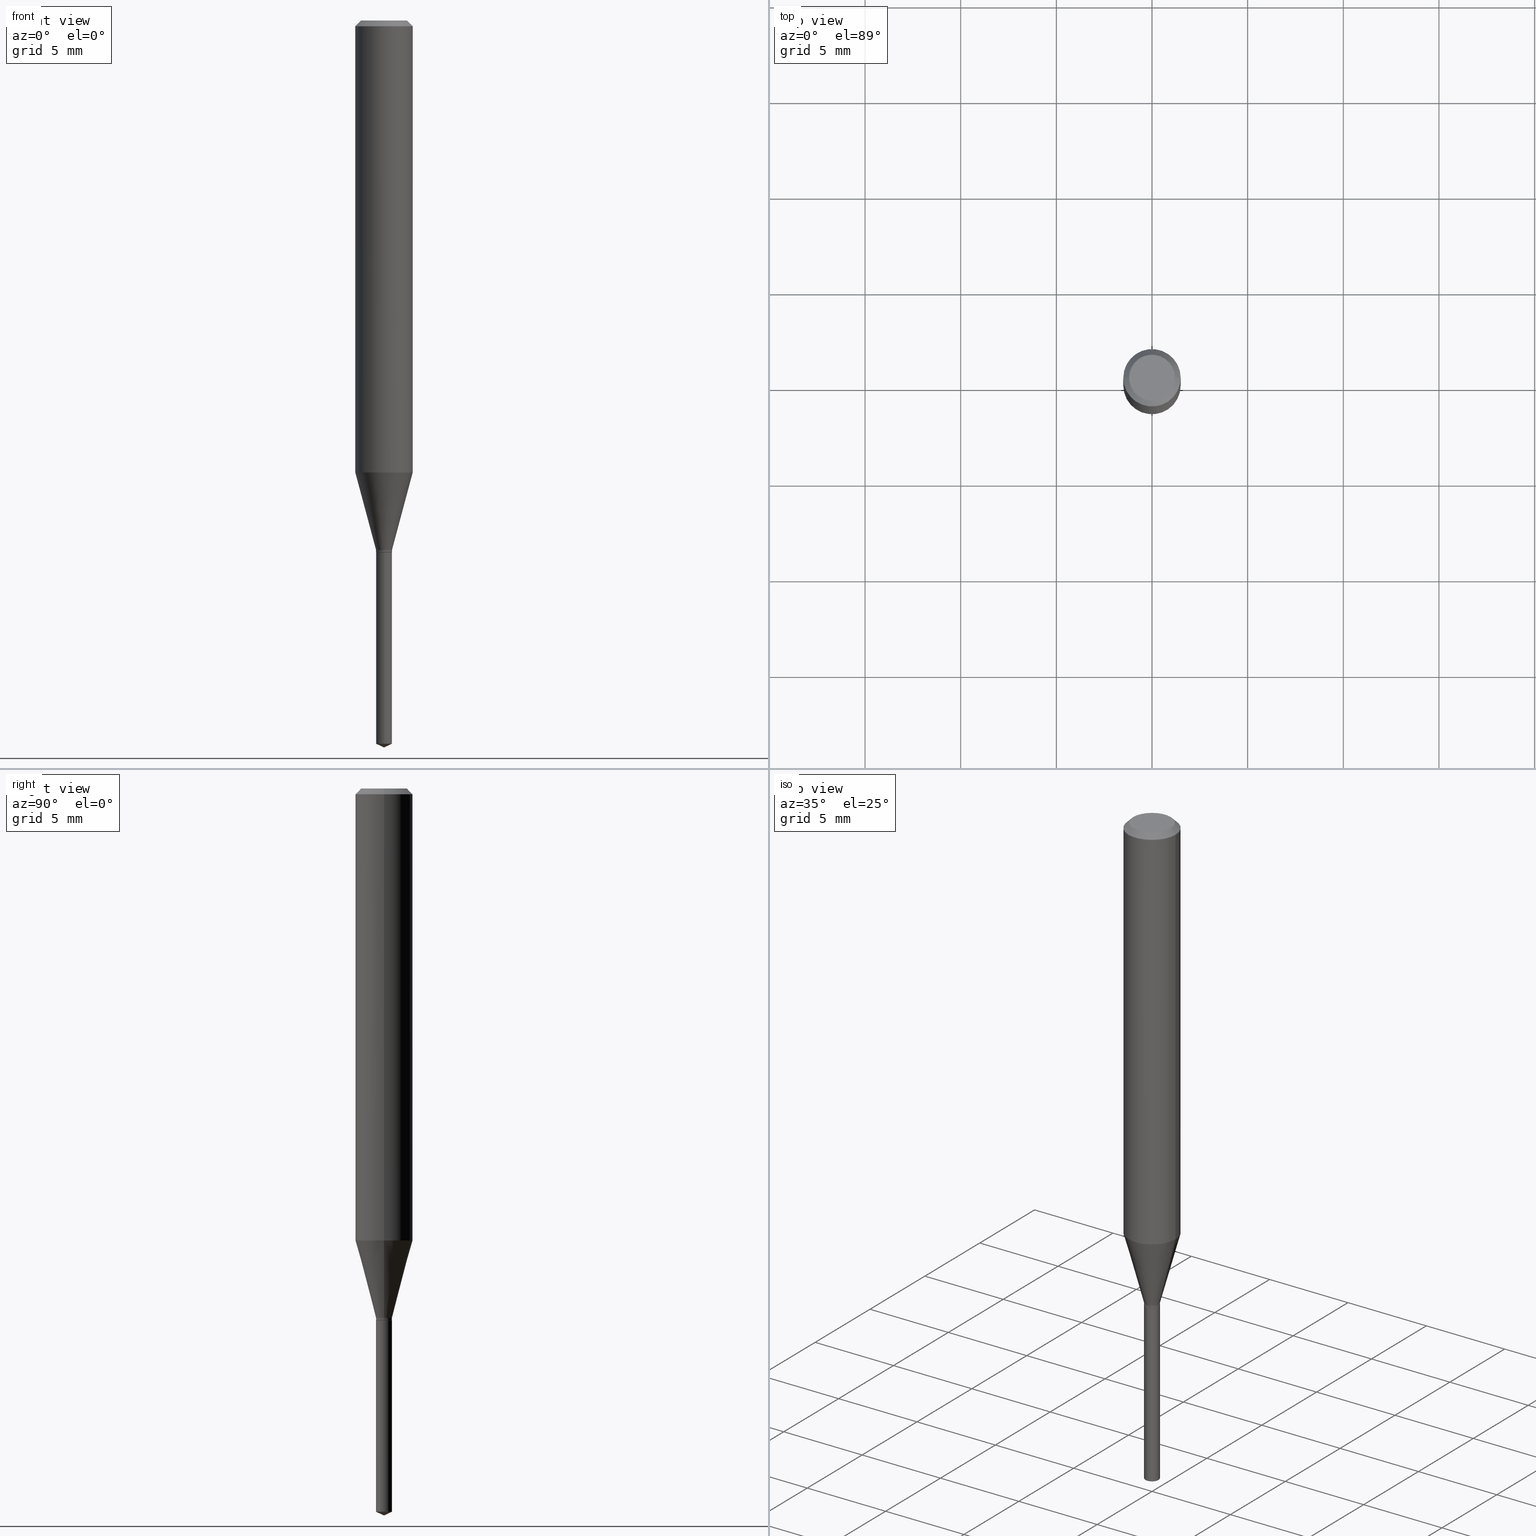
[diagram: canonical four-view strip — front | top / right | iso, engineering-drawing reading convention]
A machine part, canonical four-view strip (front | top / right | iso — engineering-drawing reading convention). The complete STEP part file that produces these views, byte-faithful:
ISO-10303-21;
HEADER;
FILE_DESCRIPTION (( 'STEP AP203' ),
    '1' );
FILE_NAME ('08309.STEP',
    '2024-04-24T14:14:33',
    ( '' ),
    ( '' ),
    'SwSTEP 2.0',
    'SolidWorks 2023',
    '' );
FILE_SCHEMA (( 'CONFIG_CONTROL_DESIGN' ));
ENDSEC;

DATA;
#1 = VECTOR ( 'NONE', #65, 39.37007874015748854 ) ;
#2 = CARTESIAN_POINT ( 'NONE',  ( 2.676565608369632355E-29, -3.821426325363822773E-15, -1.094500000000000028 ) ) ;
#3 = DIRECTION ( 'NONE',  ( 1.000000000000000000, -6.982962677686267499E-15, 0.000000000000000000 ) ) ;
#4 = VECTOR ( 'NONE', #171, 39.37007874015748854 ) ;
#5 = AXIS2_PLACEMENT_3D ( 'NONE', #285, #99, #211 ) ;
#6 = DIRECTION ( 'NONE',  ( -2.445468806185136597E-29, 3.491481338843145583E-15, 1.000000000000000000 ) ) ;
#7 = CC_DESIGN_PERSON_AND_ORGANIZATION_ASSIGNMENT ( #16, #168, ( #191 ) ) ;
#8 = PERSON_AND_ORGANIZATION ( #53, #379 ) ;
#9 = ORIENTED_EDGE ( 'NONE', *, *, #122, .T. ) ;
#10 = EDGE_CURVE ( 'NONE', #364, #276, #79, .T. ) ;
#11 = PERSON_AND_ORGANIZATION_ROLE ( 'creator' ) ;
#12 = CARTESIAN_POINT ( 'NONE',  ( 2.676565608369631794E-29, -3.821426325363822773E-15, -1.094499999999999806 ) ) ;
#13 = EDGE_LOOP ( 'NONE', ( #133, #215, #391 ) ) ;
#14 = CIRCLE ( 'NONE', #339, 0.01634999999999999648 ) ;
#15 = CONICAL_SURFACE ( 'NONE', #229, 0.05904999999999999832, 0.7853981633974452814 ) ;
#16 = PERSON_AND_ORGANIZATION ( #53, #379 ) ;
#17 = LINE ( 'NONE', #169, #407 ) ;
#18 = ORIENTED_EDGE ( 'NONE', *, *, #268, .T. ) ;
#19 =( CONVERSION_BASED_UNIT ( 'INCH', #329 ) LENGTH_UNIT ( ) NAMED_UNIT ( #461 ) );
#20 = ADVANCED_FACE ( 'NONE', ( #408 ), #433, .T. ) ;
#21 = DATE_AND_TIME ( #366, #221 ) ;
#22 = CARTESIAN_POINT ( 'NONE',  ( -0.05904999999999999832, -1.225002009473624692E-15, -0.01181000000000006871 ) ) ;
#23 = ORIENTED_EDGE ( 'NONE', *, *, #306, .T. ) ;
#24 = FACE_OUTER_BOUND ( 'NONE', #177, .T. ) ;
#25 = VERTEX_POINT ( 'NONE', #375 ) ;
#26 = DIRECTION ( 'NONE',  ( 1.000000000000000000, -6.982962677686269077E-15, 0.000000000000000000 ) ) ;
#27 = CARTESIAN_POINT ( 'NONE',  ( 0.04724000000000000421, -3.852183633974369345E-16, -3.380025165621689721E-19 ) ) ;
#28 = PERSON_AND_ORGANIZATION ( #53, #379 ) ;
#29 = CARTESIAN_POINT ( 'NONE',  ( 3.640018120713164370E-29, -5.196990287534057900E-15, -1.488475869789165795 ) ) ;
#30 = EDGE_CURVE ( 'NONE', #424, #67, #45, .T. ) ;
#31 = PERSON_AND_ORGANIZATION ( #53, #379 ) ;
#32 = LINE ( 'NONE', #182, #464 ) ;
#33 = AXIS2_PLACEMENT_3D ( 'NONE', #241, #244, #393 ) ;
#34 = CARTESIAN_POINT ( 'NONE',  ( 2.676565608369631794E-29, -3.821426325363822773E-15, -1.094499999999999806 ) ) ;
#35 = ADVANCED_FACE ( 'NONE', ( #69 ), #163, .T. ) ;
#36 = ORIENTED_EDGE ( 'NONE', *, *, #247, .T. ) ;
#37 = CYLINDRICAL_SURFACE ( 'NONE', #155, 0.05905000000000005383 ) ;
#38 = DIRECTION ( 'NONE',  ( 0.000000000000000000, 0.000000000000000000, 1.000000000000000000 ) ) ;
#39 = AXIS2_PLACEMENT_3D ( 'NONE', #477, #280, #142 ) ;
#40 = APPROVAL_PERSON_ORGANIZATION ( #28, #484, #443 ) ;
#41 = EDGE_LOOP ( 'NONE', ( #36, #299, #263, #392 ) ) ;
#42 = CARTESIAN_POINT ( 'NONE',  ( -0.01634999999999999995, -3.695825588452169658E-15, -1.089600000000000124 ) ) ;
#43 = DIRECTION ( 'NONE',  ( 1.000000000000000000, -6.982962677686266711E-15, 0.000000000000000000 ) ) ;
#44 = EDGE_CURVE ( 'NONE', #188, #431, #413, .T. ) ;
#45 = CIRCLE ( 'NONE', #137, 0.01634999999999999995 ) ;
#46 = VECTOR ( 'NONE', #157, 39.37007874015748143 ) ;
#47 = FACE_OUTER_BOUND ( 'NONE', #172, .T. ) ;
#48 = ADVANCED_FACE ( 'NONE', ( #338 ), #198, .T. ) ;
#49 = CALENDAR_DATE ( 2024, 24, 4 ) ;
#50 = ORIENTED_EDGE ( 'NONE', *, *, #417, .T. ) ;
#51 = LINE ( 'NONE', #174, #4 ) ;
#52 = ORIENTED_EDGE ( 'NONE', *, *, #94, .T. ) ;
#53 = PERSON ( 'UNSPECIFIED', 'UNSPECIFIED', 'UNSPECIFIED', ('UNSPECIFIED'), ('UNSPECIFIED'), ('UNSPECIFIED') ) ;
#54 = ORIENTED_EDGE ( 'NONE', *, *, #106, .T. ) ;
#55 = PERSON_AND_ORGANIZATION ( #53, #379 ) ;
#56 = CARTESIAN_POINT ( 'NONE',  ( 0.01634999999999999648, -3.933852024474571547E-15, -1.093999999999999861 ) ) ;
#57 = VERTEX_POINT ( 'NONE', #27 ) ;
#58 = EDGE_CURVE ( 'NONE', #67, #324, #32, .T. ) ;
#59 = AXIS2_PLACEMENT_3D ( 'NONE', #357, #399, #124 ) ;
#60 = APPROVAL_ROLE ( '' ) ;
#61 = CYLINDRICAL_SURFACE ( 'NONE', #406, 0.05905000000000005383 ) ;
#62 = VERTEX_POINT ( 'NONE', #146 ) ;
#63 = ORIENTED_EDGE ( 'NONE', *, *, #428, .T. ) ;
#64 = COORDINATED_UNIVERSAL_TIME_OFFSET ( 5, 0, .BEHIND. ) ;
#65 = DIRECTION ( 'NONE',  ( 6.439704144417040608E-15, 0.9063077870366537114, 0.4226182617406912811 ) ) ;
#66 = PRODUCT ( '08309', '08309', '', ( #224 ) ) ;
#67 = VERTEX_POINT ( 'NONE', #294 ) ;
#68 = DIRECTION ( 'NONE',  ( -2.445460715294871217E-29, 3.491492925458510144E-15, 1.000000000000000000 ) ) ;
#69 = FACE_OUTER_BOUND ( 'NONE', #131, .T. ) ;
#70 = AXIS2_PLACEMENT_3D ( 'NONE', #253, #180, #341 ) ;
#71 = APPROVAL_PERSON_ORGANIZATION ( #55, #107, #468 ) ;
#72 = CC_DESIGN_APPROVAL ( #484, ( #195 ) ) ;
#73 = ADVANCED_FACE ( 'NONE', ( #442 ), #485, .T. ) ;
#74 = DIRECTION ( 'NONE',  ( -6.982962677686265922E-15, -1.000000000000000000, 0.000000000000000000 ) ) ;
#75 = DIRECTION ( 'NONE',  ( 1.000000000000000000, -6.982962677686270655E-15, 0.000000000000000000 ) ) ;
#76 = ORIENTED_EDGE ( 'NONE', *, *, #196, .T. ) ;
#77 = LINE ( 'NONE', #380, #228 ) ;
#78 =( NAMED_UNIT ( * ) SI_UNIT ( $, .STERADIAN. ) SOLID_ANGLE_UNIT ( ) );
#79 = CIRCLE ( 'NONE', #395, 0.01634999999999999995 ) ;
#80 = ORIENTED_EDGE ( 'NONE', *, *, #113, .F. ) ;
#81 = CARTESIAN_POINT ( 'NONE',  ( 0.000000000000000000, 0.000000000000000000, 0.000000000000000000 ) ) ;
#82 = CARTESIAN_POINT ( 'NONE',  ( 2.888098660104663328E-31, -4.123439461173779030E-17, -0.01181000000000006871 ) ) ;
#83 = CARTESIAN_POINT ( 'NONE',  ( -0.01634999999999999648, 1.161737372967763554E-16, -8.042458872566769714E-31 ) ) ;
#84 = AXIS2_PLACEMENT_3D ( 'NONE', #414, #266, #43 ) ;
#85 = CARTESIAN_POINT ( 'NONE',  ( 0.000000000000000000, 0.000000000000000000, 0.000000000000000000 ) ) ;
#86 = DIRECTION ( 'NONE',  ( 1.000000000000000000, -6.982962677686266711E-15, 4.876185090822587894E-29 ) ) ;
#87 = ADVANCED_FACE ( 'NONE', ( #336 ), #296, .F. ) ;
#88 = LOCAL_TIME ( 10, 14, 33.00000000000000000, #279 ) ;
#89 = ORIENTED_EDGE ( 'NONE', *, *, #118, .T. ) ;
#90 = EDGE_LOOP ( 'NONE', ( #419, #63 ) ) ;
#91 = ORIENTED_EDGE ( 'NONE', *, *, #30, .F. ) ;
#92 = PERSON_AND_ORGANIZATION ( #53, #379 ) ;
#93 = DIRECTION ( 'NONE',  ( 1.000000000000000000, -6.982962677686266711E-15, 4.876176775795935793E-29 ) ) ;
#94 = EDGE_CURVE ( 'NONE', #431, #301, #108, .T. ) ;
#95 = CARTESIAN_POINT ( 'NONE',  ( -0.01634999999999999648, -3.695825588452169658E-15, -1.093999999999999861 ) ) ;
#96 = VECTOR ( 'NONE', #400, 39.37007874015748143 ) ;
#97 = ORIENTED_EDGE ( 'NONE', *, *, #428, .F. ) ;
#98 = CIRCLE ( 'NONE', #119, 0.05904999999999999832 ) ;
#99 = DIRECTION ( 'NONE',  ( -2.445460715294871217E-29, 3.491492925458510144E-15, 1.000000000000000000 ) ) ;
#100 = COORDINATED_UNIVERSAL_TIME_OFFSET ( 5, 0, .BEHIND. ) ;
#101 = CARTESIAN_POINT ( 'NONE',  ( 3.640018120713164370E-29, -5.196990287534057900E-15, -1.488475869789165795 ) ) ;
#102 = EDGE_LOOP ( 'NONE', ( #385, #394, #140, #91 ) ) ;
#103 = CALENDAR_DATE ( 2024, 24, 4 ) ;
#104 = DIRECTION ( 'NONE',  ( -6.982962677686265922E-15, -1.000000000000000000, 0.000000000000000000 ) ) ;
#105 = ORIENTED_EDGE ( 'NONE', *, *, #373, .T. ) ;
#106 = EDGE_CURVE ( 'NONE', #289, #203, #98, .T. ) ;
#107 = APPROVAL ( #271, 'UNSPECIFIED' ) ;
#108 = LINE ( 'NONE', #225, #420 ) ;
#109 = AXIS2_PLACEMENT_3D ( 'NONE', #308, #234, #416 ) ;
#110 = DIRECTION ( 'NONE',  ( -2.445460715294871217E-29, 3.491492925458510144E-15, 1.000000000000000000 ) ) ;
#111 = COORDINATED_UNIVERSAL_TIME_OFFSET ( 5, 0, .BEHIND. ) ;
#112 = DIRECTION ( 'NONE',  ( -6.982962677686265922E-15, -1.000000000000000000, 0.000000000000000000 ) ) ;
#113 = EDGE_CURVE ( 'NONE', #324, #289, #412, .T. ) ;
#114 = CARTESIAN_POINT ( 'NONE',  ( 2.888098660104663328E-31, -4.123439461173779030E-17, -0.01181000000000006871 ) ) ;
#115 = AXIS2_PLACEMENT_3D ( 'NONE', #81, #38, #455 ) ;
#116 = CARTESIAN_POINT ( 'NONE',  ( -0.04724000000000000421, 3.504923541997677355E-16, -3.380025165670481712E-19 ) ) ;
#117 = EDGE_CURVE ( 'NONE', #276, #62, #77, .T. ) ;
#118 = EDGE_CURVE ( 'NONE', #62, #25, #370, .T. ) ;
#119 = AXIS2_PLACEMENT_3D ( 'NONE', #114, #292, #262 ) ;
#120 = VECTOR ( 'NONE', #283, 39.37007874015748143 ) ;
#121 = DIRECTION ( 'NONE',  ( -2.445468806185136597E-29, 3.491481338843145583E-15, 1.000000000000000000 ) ) ;
#122 = EDGE_CURVE ( 'NONE', #57, #289, #410, .T. ) ;
#123 = DIRECTION ( 'NONE',  ( -1.000000000000000000, 6.982962677686266711E-15, 0.000000000000000000 ) ) ;
#124 = DIRECTION ( 'NONE',  ( 1.000000000000000000, -6.982962677686272233E-15, 0.000000000000000000 ) ) ;
#125 = AXIS2_PLACEMENT_3D ( 'NONE', #489, #300, #447 ) ;
#126 = CC_DESIGN_APPROVAL ( #107, ( #275 ) ) ;
#127 = DIRECTION ( 'NONE',  ( -2.445468806185136597E-29, 3.491481338843145583E-15, 1.000000000000000000 ) ) ;
#128 = ORIENTED_EDGE ( 'NONE', *, *, #10, .T. ) ;
#129 = FACE_OUTER_BOUND ( 'NONE', #343, .T. ) ;
#130 = APPROVAL_STATUS ( 'not_yet_approved' ) ;
#131 = EDGE_LOOP ( 'NONE', ( #250, #452, #52, #170 ) ) ;
#132 = CARTESIAN_POINT ( 'NONE',  ( 2.675342873966538993E-29, -3.819680584694400481E-15, -1.093999999999999861 ) ) ;
#133 = ORIENTED_EDGE ( 'NONE', *, *, #196, .F. ) ;
#134 = COORDINATED_UNIVERSAL_TIME_OFFSET ( 5, 0, .BEHIND. ) ;
#135 = DIRECTION ( 'NONE',  ( 1.000000000000000000, -6.982962677686272233E-15, 0.000000000000000000 ) ) ;
#136 = EDGE_CURVE ( 'NONE', #424, #472, #430, .T. ) ;
#137 = AXIS2_PLACEMENT_3D ( 'NONE', #374, #439, #335 ) ;
#138 = ORIENTED_EDGE ( 'NONE', *, *, #58, .T. ) ;
#139 = CIRCLE ( 'NONE', #381, 0.01634999999999999995 ) ;
#140 = ORIENTED_EDGE ( 'NONE', *, *, #205, .T. ) ;
#141 = SHAPE_DEFINITION_REPRESENTATION ( #481, #451 ) ;
#142 = DIRECTION ( 'NONE',  ( 1.000000000000000000, -6.982962677686265922E-15, 4.876176775795935793E-29 ) ) ;
#143 = ORIENTED_EDGE ( 'NONE', *, *, #94, .F. ) ;
#144 = EDGE_CURVE ( 'NONE', #342, #276, #51, .T. ) ;
#145 = PLANE ( 'NONE',  #232 ) ;
#146 = CARTESIAN_POINT ( 'NONE',  ( -1.141714397801436783E-16, -0.01635000000000381981, -1.094499999999999806 ) ) ;
#147 = DIRECTION ( 'NONE',  ( -2.445460715294871217E-29, 3.491492925458510144E-15, 1.000000000000000000 ) ) ;
#148 = PERSON_AND_ORGANIZATION_ROLE ( 'design_owner' ) ;
#149 = EDGE_CURVE ( 'NONE', #431, #188, #176, .T. ) ;
#150 = DIRECTION ( 'NONE',  ( 0.2588190451025213501, 1.565188264969621968E-15, 0.9659258262890682012 ) ) ;
#151 = DIRECTION ( 'NONE',  ( -6.982962677686266711E-15, -1.000000000000000000, 3.520397390770418371E-15 ) ) ;
#152 = ORIENTED_EDGE ( 'NONE', *, *, #113, .T. ) ;
#153 = DIRECTION ( 'NONE',  ( 2.445468806185136597E-29, -3.491481338843145583E-15, -1.000000000000000000 ) ) ;
#154 = VECTOR ( 'NONE', #397, 39.37007874015747433 ) ;
#155 = AXIS2_PLACEMENT_3D ( 'NONE', #85, #303, #350 ) ;
#156 = FACE_OUTER_BOUND ( 'NONE', #102, .T. ) ;
#157 = DIRECTION ( 'NONE',  ( -2.445468806185136877E-29, 3.491481338843145188E-15, 1.000000000000000000 ) ) ;
#158 = AXIS2_PLACEMENT_3D ( 'NONE', #230, #449, #112 ) ;
#159 = DIRECTION ( 'NONE',  ( 1.000000000000000000, -6.982962677686270655E-15, 0.000000000000000000 ) ) ;
#160 = EDGE_LOOP ( 'NONE', ( #97, #9, #54, #190 ) ) ;
#161 = DIRECTION ( 'NONE',  ( 1.000000000000000000, -6.982962677686269077E-15, 0.000000000000000000 ) ) ;
#162 = LINE ( 'NONE', #287, #1 ) ;
#163 = CONICAL_SURFACE ( 'NONE', #70, 0.01584999999999999951, 0.7853981633972733079 ) ;
#164 = LOCAL_TIME ( 10, 14, 33.00000000000000000, #111 ) ;
#165 = ORIENTED_EDGE ( 'NONE', *, *, #258, .T. ) ;
#166 = FACE_OUTER_BOUND ( 'NONE', #243, .T. ) ;
#167 = PRODUCT_RELATED_PRODUCT_CATEGORY ( 'detail', '', ( #66 ) ) ;
#168 = PERSON_AND_ORGANIZATION_ROLE ( 'creator' ) ;
#169 = CARTESIAN_POINT ( 'NONE',  ( -0.01584999999999999951, -3.708805301745847464E-15, -1.094500000000000028 ) ) ;
#170 = ORIENTED_EDGE ( 'NONE', *, *, #458, .F. ) ;
#171 = DIRECTION ( 'NONE',  ( -6.328713451373386733E-15, -0.9063077870366508249, 0.4226182617406975539 ) ) ;
#172 = EDGE_LOOP ( 'NONE', ( #429, #242, #138, #238 ) ) ;
#173 = DATE_AND_TIME ( #274, #88 ) ;
#174 = CARTESIAN_POINT ( 'NONE',  ( 3.658653776152657051E-29, -5.223622565778476142E-15, -1.496099999999999985 ) ) ;
#175 = CC_DESIGN_DATE_AND_TIME_ASSIGNMENT ( #21, #326, ( #191 ) ) ;
#176 = CIRCLE ( 'NONE', #273, 0.01584999999999999951 ) ;
#177 = EDGE_LOOP ( 'NONE', ( #226, #165, #152, #365 ) ) ;
#178 = CIRCLE ( 'NONE', #415, 0.04724000000000000421 ) ;
#179 = CARTESIAN_POINT ( 'NONE',  ( -0.05904999999999999832, 3.711095515056362547E-16, -0.01181000000000006871 ) ) ;
#180 = DIRECTION ( 'NONE',  ( -2.445468806185136597E-29, 3.491481338843145583E-15, 1.000000000000000000 ) ) ;
#181 = DESIGN_CONTEXT ( 'detailed design', #418, 'design' ) ;
#182 = CARTESIAN_POINT ( 'NONE',  ( 0.01634999999999999995, -3.918489506583662316E-15, -1.089600000000000124 ) ) ;
#183 = ADVANCED_FACE ( 'NONE', ( #24 ), #61, .T. ) ;
#184 = CARTESIAN_POINT ( 'NONE',  ( 4.132873053354867254E-48, -5.900647395337818946E-34, -1.690012582823346072E-19 ) ) ;
#185 = ORIENTED_EDGE ( 'NONE', *, *, #58, .F. ) ;
#186 = CONICAL_SURFACE ( 'NONE', #467, 0.01634999999999999995, 0.2617993877991500740 ) ;
#187 = CARTESIAN_POINT ( 'NONE',  ( 2.664582811219324806E-29, -3.804318066803491249E-15, -1.089600000000000124 ) ) ;
#188 = VERTEX_POINT ( 'NONE', #327 ) ;
#189 = ADVANCED_FACE ( 'NONE', ( #129 ), #355, .T. ) ;
#190 = ORIENTED_EDGE ( 'NONE', *, *, #268, .F. ) ;
#191 = PRODUCT_DEFINITION ( 'UNKNOWN', '', #275, #181 ) ;
#192 = CC_DESIGN_PERSON_AND_ORGANIZATION_ASSIGNMENT ( #31, #148, ( #66 ) ) ;
#193 = DIRECTION ( 'NONE',  ( -2.445460715294871217E-29, 3.491492925458510144E-15, 1.000000000000000000 ) ) ;
#194 = VECTOR ( 'NONE', #479, 39.37007874015748143 ) ;
#195 = SECURITY_CLASSIFICATION ( '', '', #426 ) ;
#196 = EDGE_CURVE ( 'NONE', #342, #364, #162, .T. ) ;
#197 = DIRECTION ( 'NONE',  ( 2.445468806185136597E-29, -3.491481338843145583E-15, -1.000000000000000000 ) ) ;
#198 = CONICAL_SURFACE ( 'NONE', #345, 84.42940631927518780, 1.134464013796319781 ) ;
#199 = AXIS2_PLACEMENT_3D ( 'NONE', #293, #361, #441 ) ;
#200 = CYLINDRICAL_SURFACE ( 'NONE', #5, 0.01634999999999999995 ) ;
#201 = ORIENTED_EDGE ( 'NONE', *, *, #312, .T. ) ;
#202 = DATE_TIME_ROLE ( 'classification_date' ) ;
#203 = VERTEX_POINT ( 'NONE', #22 ) ;
#204 = DIRECTION ( 'NONE',  ( -2.445468806185136597E-29, 3.491481338843145583E-15, 1.000000000000000000 ) ) ;
#205 = EDGE_CURVE ( 'NONE', #301, #67, #390, .T. ) ;
#206 = ORIENTED_EDGE ( 'NONE', *, *, #106, .F. ) ;
#207 = ADVANCED_FACE ( 'NONE', ( #368 ), #330, .F. ) ;
#208 = CARTESIAN_POINT ( 'NONE',  ( 2.676565608369631794E-29, -3.821426325363822773E-15, -1.094499999999999806 ) ) ;
#209 = AXIS2_PLACEMENT_3D ( 'NONE', #2, #127, #161 ) ;
#210 = ORIENTED_EDGE ( 'NONE', *, *, #409, .T. ) ;
#211 = DIRECTION ( 'NONE',  ( -6.982962677686265922E-15, -1.000000000000000000, 0.000000000000000000 ) ) ;
#212 = DIRECTION ( 'NONE',  ( -2.445468806185136597E-29, 3.491481338843145583E-15, 1.000000000000000000 ) ) ;
#213 = ORIENTED_EDGE ( 'NONE', *, *, #409, .F. ) ;
#214 =( NAMED_UNIT ( * ) PLANE_ANGLE_UNIT ( ) SI_UNIT ( $, .RADIAN. ) );
#215 = ORIENTED_EDGE ( 'NONE', *, *, #144, .T. ) ;
#216 = CARTESIAN_POINT ( 'NONE',  ( 0.000000000000000000, 0.000000000000000000, 0.000000000000000000 ) ) ;
#217 = ORIENTED_EDGE ( 'NONE', *, *, #149, .T. ) ;
#218 = UNCERTAINTY_MEASURE_WITH_UNIT (LENGTH_MEASURE( 1.000000000000000082E-05 ), #19, 'distance_accuracy_value', 'NONE');
#219 = CARTESIAN_POINT ( 'NONE',  ( -0.01634999999999999995, -3.688144329506715042E-15, -1.089600000000000124 ) ) ;
#220 = CARTESIAN_POINT ( 'NONE',  ( -9.261931828548885815E-28, 1.322367415117763772E-13, 37.87397874015748300 ) ) ;
#221 = LOCAL_TIME ( 10, 14, 33.00000000000000000, #64 ) ;
#222 = CARTESIAN_POINT ( 'NONE',  ( 0.05905000000000010935, -3.660264541385565561E-15, -0.9302414305168089648 ) ) ;
#223 = DIRECTION ( 'NONE',  ( -2.445468806185136597E-29, 3.491481338843145583E-15, 1.000000000000000000 ) ) ;
#224 = MECHANICAL_CONTEXT ( 'NONE', #325, 'mechanical' ) ;
#225 = CARTESIAN_POINT ( 'NONE',  ( 0.01584999999999999951, -3.932106283805150044E-15, -1.094500000000000028 ) ) ;
#226 = ORIENTED_EDGE ( 'NONE', *, *, #321, .F. ) ;
#227 = DIRECTION ( 'NONE',  ( 2.438088387897960049E-29, -3.491481338843145188E-15, -1.000000000000000000 ) ) ;
#228 = VECTOR ( 'NONE', #110, 39.37007874015748143 ) ;
#229 = AXIS2_PLACEMENT_3D ( 'NONE', #82, #197, #123 ) ;
#230 = CARTESIAN_POINT ( 'NONE',  ( 2.676565608369631794E-29, -3.821426325363822773E-15, -1.094499999999999806 ) ) ;
#231 = FACE_OUTER_BOUND ( 'NONE', #281, .T. ) ;
#232 = AXIS2_PLACEMENT_3D ( 'NONE', #208, #334, #473 ) ;
#233 = FACE_OUTER_BOUND ( 'NONE', #352, .T. ) ;
#234 = DIRECTION ( 'NONE',  ( -2.445468806185136597E-29, 3.491481338843145583E-15, 1.000000000000000000 ) ) ;
#235 = CYLINDRICAL_SURFACE ( 'NONE', #109, 0.01634999999999999648 ) ;
#236 = PERSON_AND_ORGANIZATION ( #53, #379 ) ;
#237 = APPLICATION_PROTOCOL_DEFINITION ( 'international standard', 'config_control_design', 1994, #418 ) ;
#238 = ORIENTED_EDGE ( 'NONE', *, *, #258, .F. ) ;
#239 = ADVANCED_FACE ( 'NONE', ( #363 ), #145, .F. ) ;
#240 = DATE_AND_TIME ( #423, #346 ) ;
#241 = CARTESIAN_POINT ( 'NONE',  ( 0.000000000000000000, 0.000000000000000000, 0.000000000000000000 ) ) ;
#242 = ORIENTED_EDGE ( 'NONE', *, *, #30, .T. ) ;
#243 = EDGE_LOOP ( 'NONE', ( #328, #128, #476, #436 ) ) ;
#244 = DIRECTION ( 'NONE',  ( -2.445468806185136597E-29, 3.491481338843145583E-15, 1.000000000000000000 ) ) ;
#245 = ORIENTED_EDGE ( 'NONE', *, *, #488, .T. ) ;
#246 = CARTESIAN_POINT ( 'NONE',  ( 1.161737372968127416E-16, 0.01634999999999479925, -1.488475869789165795 ) ) ;
#247 = EDGE_CURVE ( 'NONE', #301, #251, #14, .T. ) ;
#248 = FACE_OUTER_BOUND ( 'NONE', #160, .T. ) ;
#249 = DIRECTION ( 'NONE',  ( -6.982962677686265922E-15, -1.000000000000000000, 0.000000000000000000 ) ) ;
#250 = ORIENTED_EDGE ( 'NONE', *, *, #306, .F. ) ;
#251 = VERTEX_POINT ( 'NONE', #95 ) ;
#252 = CARTESIAN_POINT ( 'NONE',  ( -1.141714397801340394E-16, -0.01635000000000519371, -1.488475869789165795 ) ) ;
#253 = CARTESIAN_POINT ( 'NONE',  ( 2.676565608369632355E-29, -3.821426325363822773E-15, -1.094500000000000028 ) ) ;
#254 = CLOSED_SHELL ( 'NONE', ( #189, #73, #48, #466, #239 ) ) ;
#255 = DIRECTION ( 'NONE',  ( -2.445460715294871217E-29, 3.491492925458510144E-15, 1.000000000000000000 ) ) ;
#256 = LOCAL_TIME ( 10, 14, 33.00000000000000000, #100 ) ;
#257 = APPROVAL_STATUS ( 'not_yet_approved' ) ;
#258 = EDGE_CURVE ( 'NONE', #472, #324, #360, .T. ) ;
#259 = CC_DESIGN_PERSON_AND_ORGANIZATION_ASSIGNMENT ( #92, #434, ( #195 ) ) ;
#260 = DIRECTION ( 'NONE',  ( 0.7071067811864237829, -2.468850131080960568E-15, 0.7071067811866712516 ) ) ;
#261 = DIRECTION ( 'NONE',  ( -2.445468806185136877E-29, 3.491481338843145188E-15, 1.000000000000000000 ) ) ;
#262 = DIRECTION ( 'NONE',  ( 1.000000000000000000, -6.982962677686266711E-15, 0.000000000000000000 ) ) ;
#263 = ORIENTED_EDGE ( 'NONE', *, *, #488, .F. ) ;
#264 = APPROVAL ( #130, 'UNSPECIFIED' ) ;
#265 = CIRCLE ( 'NONE', #486, 0.01634999999999999995 ) ;
#266 = DIRECTION ( 'NONE',  ( -2.445468806185136597E-29, 3.491481338843145583E-15, 1.000000000000000000 ) ) ;
#267 = LINE ( 'NONE', #83, #46 ) ;
#268 = EDGE_CURVE ( 'NONE', #401, #203, #469, .T. ) ;
#269 = CARTESIAN_POINT ( 'NONE',  ( 2.888098660104663328E-31, -4.123439461173779030E-17, -0.01181000000000006871 ) ) ;
#270 = VECTOR ( 'NONE', #193, 39.37007874015748143 ) ;
#271 = APPROVAL_STATUS ( 'not_yet_approved' ) ;
#272 = EDGE_CURVE ( 'NONE', #276, #364, #265, .T. ) ;
#273 = AXIS2_PLACEMENT_3D ( 'NONE', #427, #212, #26 ) ;
#274 = CALENDAR_DATE ( 2024, 24, 4 ) ;
#275 = PRODUCT_DEFINITION_FORMATION_WITH_SPECIFIED_SOURCE ( 'ANY', '', #66, .NOT_KNOWN. ) ;
#276 = VERTEX_POINT ( 'NONE', #252 ) ;
#277 = MANIFOLD_SOLID_BREP ( 'Body-Move/Copy2[1]', #254 ) ;
#278 = DIRECTION ( 'NONE',  ( -2.445468806185136597E-29, 3.491481338843145583E-15, 1.000000000000000000 ) ) ;
#279 = COORDINATED_UNIVERSAL_TIME_OFFSET ( 5, 0, .BEHIND. ) ;
#280 = DIRECTION ( 'NONE',  ( -2.438088387897960049E-29, 3.491481338843145188E-15, 1.000000000000000000 ) ) ;
#281 = EDGE_LOOP ( 'NONE', ( #217, #23, #398, #143 ) ) ;
#282 = DIRECTION ( 'NONE',  ( 1.000000000000000000, -6.982962677686270655E-15, 0.000000000000000000 ) ) ;
#283 = DIRECTION ( 'NONE',  ( -0.7071067811865453523, 2.468850131082234184E-15, -0.7071067811865496822 ) ) ;
#284 = EDGE_LOOP ( 'NONE', ( #463, #422, #18, #50 ) ) ;
#285 = CARTESIAN_POINT ( 'NONE',  ( 2.676565608369631794E-29, -3.821426325363822773E-15, -1.094499999999999806 ) ) ;
#286 = PERSON_AND_ORGANIZATION ( #53, #379 ) ;
#287 = CARTESIAN_POINT ( 'NONE',  ( 3.658671642415649744E-29, -5.223597202677443246E-15, -1.496099999999999985 ) ) ;
#288 = CONICAL_SURFACE ( 'NONE', #209, 0.01584999999999999951, 0.7853981633972733079 ) ;
#289 = VERTEX_POINT ( 'NONE', #291 ) ;
#290 = EDGE_LOOP ( 'NONE', ( #245, #474, #213, #185 ) ) ;
#291 = CARTESIAN_POINT ( 'NONE',  ( 0.05904999999999999832, -4.535783407291118600E-16, -0.01181000000000006871 ) ) ;
#292 = DIRECTION ( 'NONE',  ( -2.445468806185136597E-29, 3.491481338843145583E-15, 1.000000000000000000 ) ) ;
#293 = CARTESIAN_POINT ( 'NONE',  ( 2.274876400549894550E-29, -3.247920595268191429E-15, -0.9302414305168089648 ) ) ;
#294 = CARTESIAN_POINT ( 'NONE',  ( 0.01634999999999999995, -3.918489506583662316E-15, -1.089600000000000124 ) ) ;
#295 = ADVANCED_FACE ( 'NONE', ( #403 ), #371, .T. ) ;
#296 = PLANE ( 'NONE',  #307 ) ;
#297 = CIRCLE ( 'NONE', #158, 0.01634999999999999995 ) ;
#298 = DIRECTION ( 'NONE',  ( -1.000000000000000000, 6.982962677686265922E-15, -4.876176775795935793E-29 ) ) ;
#299 = ORIENTED_EDGE ( 'NONE', *, *, #437, .T. ) ;
#300 = DIRECTION ( 'NONE',  ( -2.445460715294871217E-29, 3.491492925458510144E-15, 1.000000000000000000 ) ) ;
#301 = VERTEX_POINT ( 'NONE', #56 ) ;
#302 = APPROVAL_PERSON_ORGANIZATION ( #8, #264, #60 ) ;
#303 = DIRECTION ( 'NONE',  ( -2.445468806185136597E-29, 3.491481338843145583E-15, 1.000000000000000000 ) ) ;
#304 = DIRECTION ( 'NONE',  ( -2.445468806185136597E-29, 3.491481338843145583E-15, 1.000000000000000000 ) ) ;
#305 = LINE ( 'NONE', #462, #270 ) ;
#306 = EDGE_CURVE ( 'NONE', #188, #251, #17, .T. ) ;
#307 = AXIS2_PLACEMENT_3D ( 'NONE', #184, #227, #298 ) ;
#308 = CARTESIAN_POINT ( 'NONE',  ( 0.000000000000000000, 0.000000000000000000, 0.000000000000000000 ) ) ;
#309 = CLOSED_SHELL ( 'NONE', ( #456, #367, #402, #20, #295, #377, #340, #183, #425, #87, #207, #35 ) ) ;
#310 = CIRCLE ( 'NONE', #460, 0.04724000000000000421 ) ;
#311 = CC_DESIGN_SECURITY_CLASSIFICATION ( #195, ( #275 ) ) ;
#312 = EDGE_CURVE ( 'NONE', #25, #62, #297, .T. ) ;
#313 = DIRECTION ( 'NONE',  ( -1.000000000000000000, 6.982962677686266711E-15, 0.000000000000000000 ) ) ;
#314 = CC_DESIGN_DATE_AND_TIME_ASSIGNMENT ( #322, #202, ( #195 ) ) ;
#315 = ORIENTED_EDGE ( 'NONE', *, *, #44, .F. ) ;
#316 = DIRECTION ( 'NONE',  ( -2.445468806185136597E-29, 3.491481338843145583E-15, 1.000000000000000000 ) ) ;
#317 = VECTOR ( 'NONE', #483, 39.37007874015748143 ) ;
#318 = CARTESIAN_POINT ( 'NONE',  ( 0.01634999999999999648, -1.141714397801704256E-16, 7.972549028426353368E-31 ) ) ;
#319 = ORIENTED_EDGE ( 'NONE', *, *, #272, .F. ) ;
#320 = CARTESIAN_POINT ( 'NONE',  ( 2.664582811219324806E-29, -3.804318066803491249E-15, -1.089600000000000124 ) ) ;
#321 = EDGE_CURVE ( 'NONE', #472, #203, #382, .T. ) ;
#322 = DATE_AND_TIME ( #49, #256 ) ;
#323 = DIRECTION ( 'NONE',  ( -2.445460715294871217E-29, 3.491492925458510144E-15, 1.000000000000000000 ) ) ;
#324 = VERTEX_POINT ( 'NONE', #222 ) ;
#325 = APPLICATION_CONTEXT ( 'configuration controlled 3d designs of mechanical parts and assemblies' ) ;
#326 = DATE_TIME_ROLE ( 'creation_date' ) ;
#327 = CARTESIAN_POINT ( 'NONE',  ( -0.01584999999999999951, -3.706156074571735474E-15, -1.094500000000000028 ) ) ;
#328 = ORIENTED_EDGE ( 'NONE', *, *, #373, .F. ) ;
#329 = LENGTH_MEASURE_WITH_UNIT ( LENGTH_MEASURE( 0.02539999999999999897 ), #465 );
#330 = PLANE ( 'NONE',  #39 ) ;
#331 = CIRCLE ( 'NONE', #59, 0.01634999999999999648 ) ;
#332 = ORIENTED_EDGE ( 'NONE', *, *, #149, .F. ) ;
#333 = APPROVAL_DATE_TIME ( #482, #484 ) ;
#334 = DIRECTION ( 'NONE',  ( 2.445460715294871217E-29, -3.491492925458510144E-15, -1.000000000000000000 ) ) ;
#335 = DIRECTION ( 'NONE',  ( 1.000000000000000000, -6.982962677686270655E-15, 0.000000000000000000 ) ) ;
#336 = FACE_OUTER_BOUND ( 'NONE', #90, .T. ) ;
#337 = AXIS2_PLACEMENT_3D ( 'NONE', #34, #147, #450 ) ;
#338 = FACE_OUTER_BOUND ( 'NONE', #13, .T. ) ;
#339 = AXIS2_PLACEMENT_3D ( 'NONE', #132, #435, #135 ) ;
#340 = ADVANCED_FACE ( 'NONE', ( #47 ), #186, .T. ) ;
#341 = DIRECTION ( 'NONE',  ( 1.000000000000000000, -6.982962677686269077E-15, 0.000000000000000000 ) ) ;
#342 = VERTEX_POINT ( 'NONE', #389 ) ;
#343 = EDGE_LOOP ( 'NONE', ( #369, #105, #448, #362 ) ) ;
#344 = CARTESIAN_POINT ( 'NONE',  ( -0.05905000000000005383, 4.195754854663395423E-16, -2.904631170795524694E-30 ) ) ;
#345 = AXIS2_PLACEMENT_3D ( 'NONE', #220, #487, #151 ) ;
#346 = LOCAL_TIME ( 10, 14, 33.00000000000000000, #134 ) ;
#347 = CARTESIAN_POINT ( 'NONE',  ( 8.265746106709734507E-48, -1.180129479067563789E-33, -3.380025165646692144E-19 ) ) ;
#348 = CC_DESIGN_PERSON_AND_ORGANIZATION_ASSIGNMENT ( #236, #387, ( #275 ) ) ;
#349 = CARTESIAN_POINT ( 'NONE',  ( 2.664582811219324806E-29, -3.804318066803491249E-15, -1.089600000000000124 ) ) ;
#350 = DIRECTION ( 'NONE',  ( 1.000000000000000000, -6.982962677686266711E-15, 4.876176775795935793E-29 ) ) ;
#351 = EDGE_CURVE ( 'NONE', #401, #57, #310, .T. ) ;
#352 = EDGE_LOOP ( 'NONE', ( #210, #411, #206, #80 ) ) ;
#353 = CARTESIAN_POINT ( 'NONE',  ( 8.265746106709734507E-48, -1.180129479067563789E-33, -3.380025165646692144E-19 ) ) ;
#354 = APPROVAL_DATE_TIME ( #173, #264 ) ;
#355 = CYLINDRICAL_SURFACE ( 'NONE', #444, 0.01634999999999999995 ) ;
#356 = EDGE_LOOP ( 'NONE', ( #332, #315 ) ) ;
#357 = CARTESIAN_POINT ( 'NONE',  ( 2.675342873966538993E-29, -3.819680584694400481E-15, -1.093999999999999861 ) ) ;
#358 = DIRECTION ( 'NONE',  ( 1.000000000000000000, -6.982962677686266711E-15, 4.876185090822587894E-29 ) ) ;
#359 = APPROVAL_DATE_TIME ( #240, #107 ) ;
#360 = CIRCLE ( 'NONE', #199, 0.05905000000000010935 ) ;
#361 = DIRECTION ( 'NONE',  ( -2.445468806185136597E-29, 3.491481338843145583E-15, 1.000000000000000000 ) ) ;
#362 = ORIENTED_EDGE ( 'NONE', *, *, #117, .F. ) ;
#363 = FACE_OUTER_BOUND ( 'NONE', #388, .T. ) ;
#364 = VERTEX_POINT ( 'NONE', #246 ) ;
#365 = ORIENTED_EDGE ( 'NONE', *, *, #417, .F. ) ;
#366 = CALENDAR_DATE ( 2024, 24, 4 ) ;
#367 = ADVANCED_FACE ( 'NONE', ( #248 ), #453, .T. ) ;
#368 = FACE_OUTER_BOUND ( 'NONE', #356, .T. ) ;
#369 = ORIENTED_EDGE ( 'NONE', *, *, #272, .T. ) ;
#370 = CIRCLE ( 'NONE', #337, 0.01634999999999999995 ) ;
#371 = CYLINDRICAL_SURFACE ( 'NONE', #33, 0.01634999999999999648 ) ;
#372 = CC_DESIGN_APPROVAL ( #264, ( #191 ) ) ;
#373 = EDGE_CURVE ( 'NONE', #364, #25, #305, .T. ) ;
#374 = CARTESIAN_POINT ( 'NONE',  ( 2.664582811219324806E-29, -3.804318066803491249E-15, -1.089600000000000124 ) ) ;
#375 = CARTESIAN_POINT ( 'NONE',  ( 1.161737372968127909E-16, 0.01634999999999617315, -1.094499999999999806 ) ) ;
#376 = CARTESIAN_POINT ( 'NONE',  ( 0.05905000000000005383, -4.123439461173744271E-16, 2.879382386107502672E-30 ) ) ;
#377 = ADVANCED_FACE ( 'NONE', ( #156 ), #235, .T. ) ;
#378 = AXIS2_PLACEMENT_3D ( 'NONE', #404, #480, #446 ) ;
#379 = ORGANIZATION ( 'UNSPECIFIED', 'UNSPECIFIED', '' ) ;
#380 = CARTESIAN_POINT ( 'NONE',  ( -1.141714397801436783E-16, -0.01635000000000381981, -1.094499999999999806 ) ) ;
#381 = AXIS2_PLACEMENT_3D ( 'NONE', #320, #316, #282 ) ;
#382 = LINE ( 'NONE', #344, #384 ) ;
#383 = FACE_OUTER_BOUND ( 'NONE', #284, .T. ) ;
#384 = VECTOR ( 'NONE', #261, 39.37007874015748143 ) ;
#385 = ORIENTED_EDGE ( 'NONE', *, *, #437, .F. ) ;
#386 = CIRCLE ( 'NONE', #84, 0.05904999999999999832 ) ;
#387 = PERSON_AND_ORGANIZATION_ROLE ( 'design_supplier' ) ;
#388 = EDGE_LOOP ( 'NONE', ( #89, #201 ) ) ;
#389 = CARTESIAN_POINT ( 'NONE',  ( 3.658653776152655930E-29, -5.223622565778476142E-15, -1.496099999999999985 ) ) ;
#390 = LINE ( 'NONE', #318, #194 ) ;
#391 = ORIENTED_EDGE ( 'NONE', *, *, #10, .F. ) ;
#392 = ORIENTED_EDGE ( 'NONE', *, *, #205, .F. ) ;
#393 = DIRECTION ( 'NONE',  ( 1.000000000000000000, -6.982962677686265922E-15, 4.876176775795935793E-29 ) ) ;
#394 = ORIENTED_EDGE ( 'NONE', *, *, #458, .T. ) ;
#395 = AXIS2_PLACEMENT_3D ( 'NONE', #29, #255, #74 ) ;
#396 = AXIS2_PLACEMENT_3D ( 'NONE', #269, #153, #313 ) ;
#397 = DIRECTION ( 'NONE',  ( -0.2588190451025213501, 5.211531920934551042E-15, 0.9659258262890682012 ) ) ;
#398 = ORIENTED_EDGE ( 'NONE', *, *, #247, .F. ) ;
#399 = DIRECTION ( 'NONE',  ( -2.445468806185136597E-29, 3.491481338843145583E-15, 1.000000000000000000 ) ) ;
#400 = DIRECTION ( 'NONE',  ( 0.7071067811865453523, -7.319954787623248157E-15, -0.7071067811865496822 ) ) ;
#401 = VERTEX_POINT ( 'NONE', #116 ) ;
#402 = ADVANCED_FACE ( 'NONE', ( #233 ), #37, .T. ) ;
#403 = FACE_OUTER_BOUND ( 'NONE', #41, .T. ) ;
#404 = CARTESIAN_POINT ( 'NONE',  ( 2.676565608369632355E-29, -3.821426325363822773E-15, -1.094500000000000028 ) ) ;
#405 = APPLICATION_PROTOCOL_DEFINITION ( 'international standard', 'config_control_design', 1994, #325 ) ;
#406 = AXIS2_PLACEMENT_3D ( 'NONE', #216, #204, #93 ) ;
#407 = VECTOR ( 'NONE', #471, 39.37007874015748143 ) ;
#408 = FACE_OUTER_BOUND ( 'NONE', #290, .T. ) ;
#409 = EDGE_CURVE ( 'NONE', #324, #472, #445, .T. ) ;
#410 = LINE ( 'NONE', #438, #96 ) ;
#411 = ORIENTED_EDGE ( 'NONE', *, *, #321, .T. ) ;
#412 = LINE ( 'NONE', #376, #317 ) ;
#413 = CIRCLE ( 'NONE', #378, 0.01584999999999999951 ) ;
#414 = CARTESIAN_POINT ( 'NONE',  ( 2.888098660104663328E-31, -4.123439461173779030E-17, -0.01181000000000006871 ) ) ;
#415 = AXIS2_PLACEMENT_3D ( 'NONE', #347, #304, #86 ) ;
#416 = DIRECTION ( 'NONE',  ( 1.000000000000000000, -6.982962677686265922E-15, 4.876176775795935793E-29 ) ) ;
#417 = EDGE_CURVE ( 'NONE', #203, #289, #386, .T. ) ;
#418 = APPLICATION_CONTEXT ( 'configuration controlled 3d designs of mechanical parts and assemblies' ) ;
#419 = ORIENTED_EDGE ( 'NONE', *, *, #351, .T. ) ;
#420 = VECTOR ( 'NONE', #260, 39.37007874015748143 ) ;
#421 = AXIS2_PLACEMENT_3D ( 'NONE', #454, #121, #3 ) ;
#422 = ORIENTED_EDGE ( 'NONE', *, *, #351, .F. ) ;
#423 = CALENDAR_DATE ( 2024, 24, 4 ) ;
#424 = VERTEX_POINT ( 'NONE', #42 ) ;
#425 = ADVANCED_FACE ( 'NONE', ( #383 ), #15, .T. ) ;
#426 = SECURITY_CLASSIFICATION_LEVEL ( 'unclassified' ) ;
#427 = CARTESIAN_POINT ( 'NONE',  ( 2.676565608369632355E-29, -3.821426325363822773E-15, -1.094500000000000028 ) ) ;
#428 = EDGE_CURVE ( 'NONE', #57, #401, #178, .T. ) ;
#429 = ORIENTED_EDGE ( 'NONE', *, *, #136, .F. ) ;
#430 = LINE ( 'NONE', #219, #154 ) ;
#431 = VERTEX_POINT ( 'NONE', #457 ) ;
#432 = CARTESIAN_POINT ( 'NONE',  ( -0.05905000000000010935, -2.828345109801851148E-15, -0.9302414305168089648 ) ) ;
#433 = CONICAL_SURFACE ( 'NONE', #459, 0.01634999999999999995, 0.2617993877991500740 ) ;
#434 = PERSON_AND_ORGANIZATION_ROLE ( 'classification_officer' ) ;
#435 = DIRECTION ( 'NONE',  ( -2.445468806185136597E-29, 3.491481338843145583E-15, 1.000000000000000000 ) ) ;
#436 = ORIENTED_EDGE ( 'NONE', *, *, #312, .F. ) ;
#437 = EDGE_CURVE ( 'NONE', #251, #424, #267, .T. ) ;
#438 = CARTESIAN_POINT ( 'NONE',  ( 0.05904999999999999832, -4.463468013801466955E-16, -0.01181000000000006871 ) ) ;
#439 = DIRECTION ( 'NONE',  ( -2.445468806185136597E-29, 3.491481338843145583E-15, 1.000000000000000000 ) ) ;
#440 = MANIFOLD_SOLID_BREP ( 'Body-Move/Copy2[2]', #309 ) ;
#441 = DIRECTION ( 'NONE',  ( 1.000000000000000000, -6.982962677686267499E-15, 0.000000000000000000 ) ) ;
#442 = FACE_OUTER_BOUND ( 'NONE', #470, .T. ) ;
#443 = APPROVAL_ROLE ( '' ) ;
#444 = AXIS2_PLACEMENT_3D ( 'NONE', #12, #68, #104 ) ;
#445 = CIRCLE ( 'NONE', #421, 0.05905000000000010935 ) ;
#446 = DIRECTION ( 'NONE',  ( 1.000000000000000000, -6.982962677686269077E-15, 0.000000000000000000 ) ) ;
#447 = DIRECTION ( 'NONE',  ( -6.982962677686266711E-15, -1.000000000000000000, 3.520397390770418371E-15 ) ) ;
#448 = ORIENTED_EDGE ( 'NONE', *, *, #118, .F. ) ;
#449 = DIRECTION ( 'NONE',  ( -2.445460715294871217E-29, 3.491492925458510144E-15, 1.000000000000000000 ) ) ;
#450 = DIRECTION ( 'NONE',  ( -6.982962677686265922E-15, -1.000000000000000000, 0.000000000000000000 ) ) ;
#451 = ADVANCED_BREP_SHAPE_REPRESENTATION ( '08309', ( #277, #440, #115 ), #475 ) ;
#452 = ORIENTED_EDGE ( 'NONE', *, *, #44, .T. ) ;
#453 = CONICAL_SURFACE ( 'NONE', #396, 0.05904999999999999832, 0.7853981633974452814 ) ;
#454 = CARTESIAN_POINT ( 'NONE',  ( 2.274876400549894550E-29, -3.247920595268191429E-15, -0.9302414305168089648 ) ) ;
#455 = DIRECTION ( 'NONE',  ( 1.000000000000000000, 0.000000000000000000, 0.000000000000000000 ) ) ;
#456 = ADVANCED_FACE ( 'NONE', ( #231 ), #288, .T. ) ;
#457 = CARTESIAN_POINT ( 'NONE',  ( 0.01584999999999999951, -3.932106283805150044E-15, -1.094500000000000028 ) ) ;
#458 = EDGE_CURVE ( 'NONE', #251, #301, #331, .T. ) ;
#459 = AXIS2_PLACEMENT_3D ( 'NONE', #187, #223, #75 ) ;
#460 = AXIS2_PLACEMENT_3D ( 'NONE', #353, #278, #358 ) ;
#461 = DIMENSIONAL_EXPONENTS ( 1.000000000000000000, 0.000000000000000000, 0.000000000000000000, 0.000000000000000000, 0.000000000000000000, 0.000000000000000000, 0.000000000000000000 ) ;
#462 = CARTESIAN_POINT ( 'NONE',  ( 1.161737372968031274E-16, 0.01634999999999617662, -1.094499999999999806 ) ) ;
#463 = ORIENTED_EDGE ( 'NONE', *, *, #122, .F. ) ;
#464 = VECTOR ( 'NONE', #150, 39.37007874015747433 ) ;
#465 =( LENGTH_UNIT ( ) NAMED_UNIT ( * ) SI_UNIT ( $, .METRE. ) );
#466 = ADVANCED_FACE ( 'NONE', ( #166 ), #200, .T. ) ;
#467 = AXIS2_PLACEMENT_3D ( 'NONE', #349, #6, #159 ) ;
#468 = APPROVAL_ROLE ( '' ) ;
#469 = LINE ( 'NONE', #179, #120 ) ;
#470 = EDGE_LOOP ( 'NONE', ( #478, #76, #319 ) ) ;
#471 = DIRECTION ( 'NONE',  ( -0.7071067811864237829, 7.493145998869907665E-15, 0.7071067811866712516 ) ) ;
#472 = VERTEX_POINT ( 'NONE', #432 ) ;
#473 = DIRECTION ( 'NONE',  ( 6.982962677686265922E-15, 1.000000000000000000, -3.491492925458510144E-15 ) ) ;
#474 = ORIENTED_EDGE ( 'NONE', *, *, #136, .T. ) ;
#475 =( GEOMETRIC_REPRESENTATION_CONTEXT ( 3 ) GLOBAL_UNCERTAINTY_ASSIGNED_CONTEXT ( ( #218 ) ) GLOBAL_UNIT_ASSIGNED_CONTEXT ( ( #19, #214, #78 ) ) REPRESENTATION_CONTEXT ( 'NONE', 'WORKASPACE' ) );
#476 = ORIENTED_EDGE ( 'NONE', *, *, #117, .T. ) ;
#477 = CARTESIAN_POINT ( 'NONE',  ( -3.909904953069434821E-29, -1.325362704796803838E-14, -1.094500000000000028 ) ) ;
#478 = ORIENTED_EDGE ( 'NONE', *, *, #144, .F. ) ;
#479 = DIRECTION ( 'NONE',  ( -2.445468806185136877E-29, 3.491481338843145188E-15, 1.000000000000000000 ) ) ;
#480 = DIRECTION ( 'NONE',  ( -2.445468806185136597E-29, 3.491481338843145583E-15, 1.000000000000000000 ) ) ;
#481 = PRODUCT_DEFINITION_SHAPE ( 'NONE', 'NONE',  #191 ) ;
#482 = DATE_AND_TIME ( #103, #164 ) ;
#483 = DIRECTION ( 'NONE',  ( -2.445468806185136877E-29, 3.491481338843145188E-15, 1.000000000000000000 ) ) ;
#484 = APPROVAL ( #257, 'UNSPECIFIED' ) ;
#485 = CONICAL_SURFACE ( 'NONE', #125, 84.42940631927518780, 1.134464013796319781 ) ;
#486 = AXIS2_PLACEMENT_3D ( 'NONE', #101, #323, #249 ) ;
#487 = DIRECTION ( 'NONE',  ( -2.445460715294871217E-29, 3.491492925458510144E-15, 1.000000000000000000 ) ) ;
#488 = EDGE_CURVE ( 'NONE', #67, #424, #139, .T. ) ;
#489 = CARTESIAN_POINT ( 'NONE',  ( -9.261931828548885815E-28, 1.322367415117763772E-13, 37.87397874015748300 ) ) ;
#490 = CC_DESIGN_PERSON_AND_ORGANIZATION_ASSIGNMENT ( #286, #11, ( #275 ) ) ;
ENDSEC;
END-ISO-10303-21;
